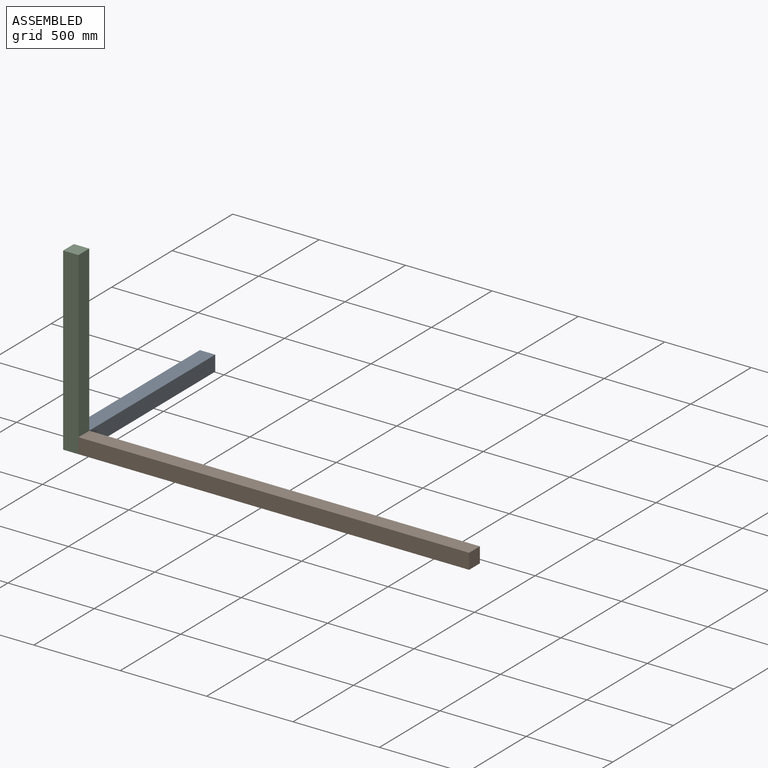
[diagram: assembled view]
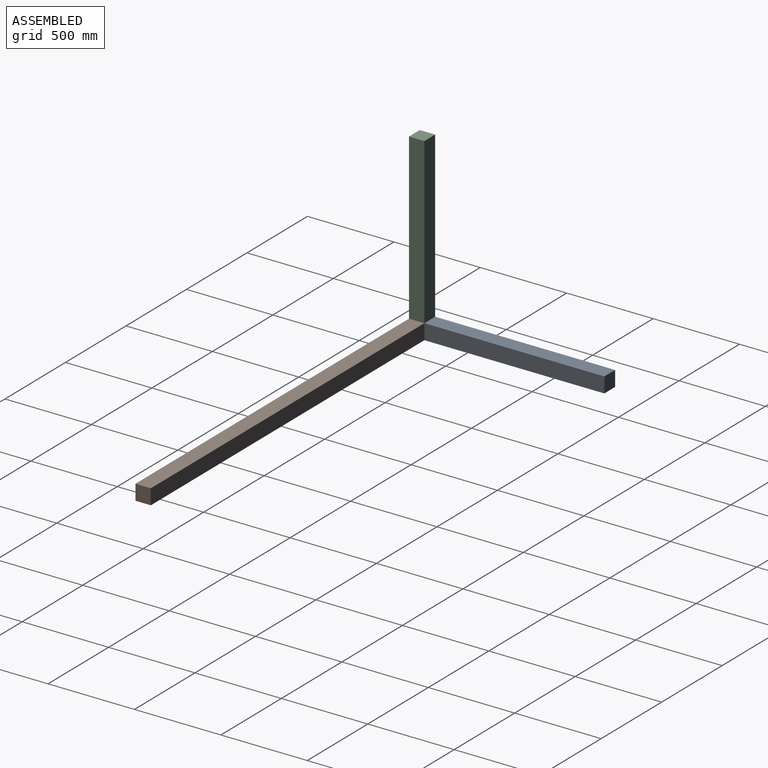
[diagram: assembled view, second angle]
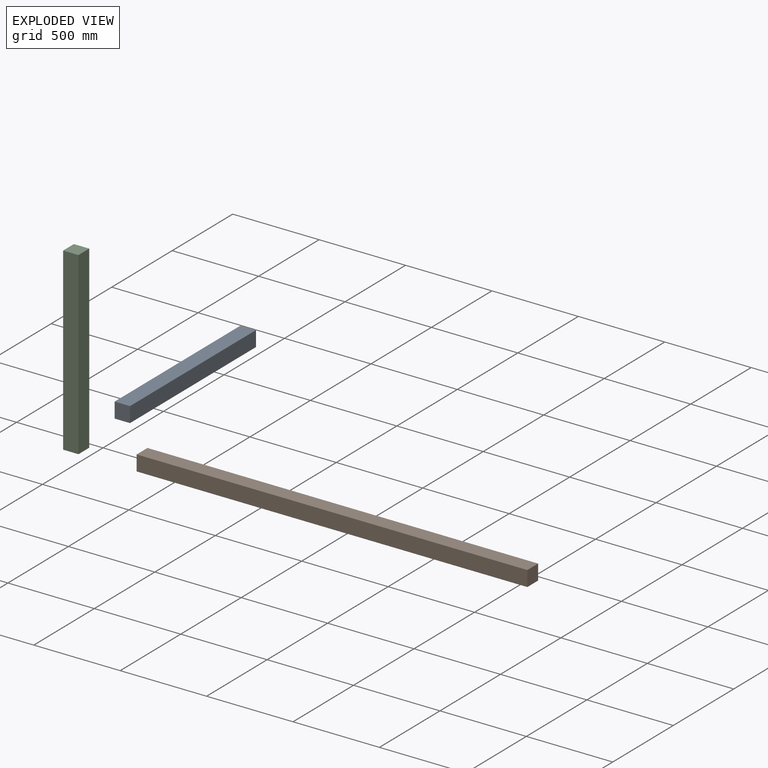
[diagram: exploded view]
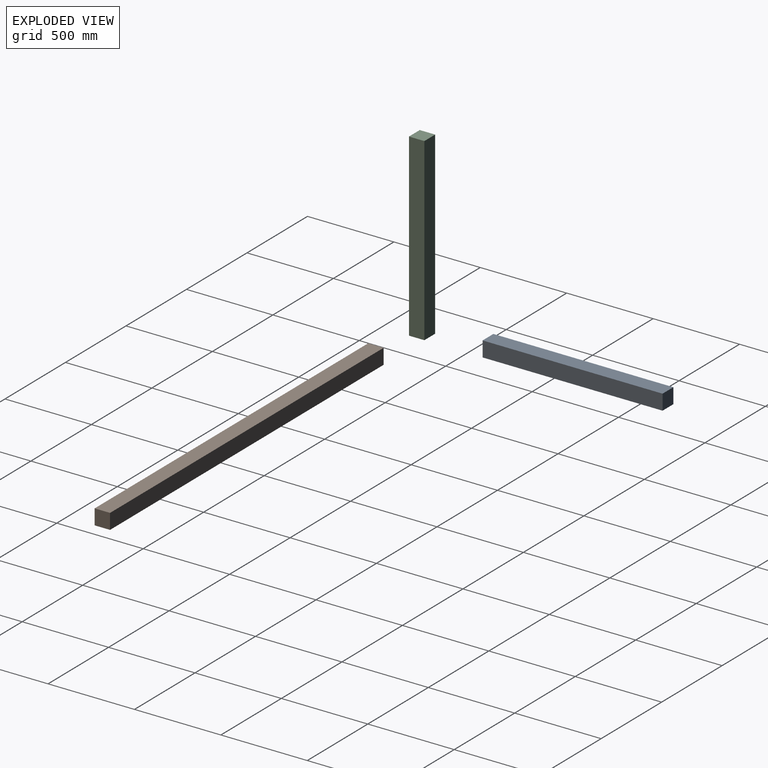
[diagram: exploded view, second angle]
ASSEMBLY  parts=3 mates=6
PART A: 6 faces, bbox 1041.4x88.9x88.9 mm
  f0: plane 1041.4x88.9mm, normal (0,-1,0), area 92580.5mm2, adj f1,f3,f4,f5
  f1: plane 1041.4x88.9mm, normal (0,0,-1), area 92580.5mm2, adj f0,f2,f4,f5
  f2: plane 1041.4x88.9mm, normal (0,1,0), area 92580.5mm2, adj f1,f3,f4,f5
  f3: plane 1041.4x88.9mm, normal (0,0,1), area 92580.5mm2, adj f0,f2,f4,f5
  f4: plane 88.9x88.9mm, normal (-1,0,0), area 7903.2mm2, adj f0,f1,f2,f3
  f5: plane 88.9x88.9mm, normal (1,0,0), area 7903.2mm2, adj f0,f1,f2,f3
PART B: 6 faces, bbox 2260.6x88.9x88.9 mm
  f0: plane 2260.6x88.9mm, normal (0,-1,0), area 200967.3mm2, adj f1,f3,f4,f5
  f1: plane 2260.6x88.9mm, normal (0,0,-1), area 200967.3mm2, adj f0,f2,f4,f5
  f2: plane 2260.6x88.9mm, normal (0,1,0), area 200967.3mm2, adj f1,f3,f4,f5
  f3: plane 2260.6x88.9mm, normal (0,0,1), area 200967.3mm2, adj f0,f2,f4,f5
  f4: plane 88.9x88.9mm, normal (-1,0,0), area 7903.2mm2, adj f0,f1,f2,f3
  f5: plane 88.9x88.9mm, normal (1,0,0), area 7903.2mm2, adj f0,f1,f2,f3
PART C: same geometry as A
PLACE A rot(axis=(0,0,1),90deg) t=(-2305.05,1085.85,0)mm
PLACE B at identity fixed
PLACE C rot(axis=(0,1,0),90deg) t=(-2305.05,0,-44.45)mm
MATE planar C.f5 <-> A.f1  axis (0,0,-1) through (-2305.05,0,-44.45)mm
MATE planar C.f3 <-> B.f4  axis (1,0,0) through (-2260.6,0,476.25)mm
MATE planar C.f5 <-> B.f1  axis (0,0,-1) through (-2305.05,0,-44.45)mm
MATE planar C.f0 <-> B.f0  axis (0,-1,0) through (-2305.05,-44.45,476.25)mm
MATE planar A.f2 <-> C.f1  axis (-1,0,0) through (-2349.5,565.15,0)mm
MATE planar C.f2 <-> A.f4  axis (0,1,0) through (-2305.05,44.45,-44.45)mm
